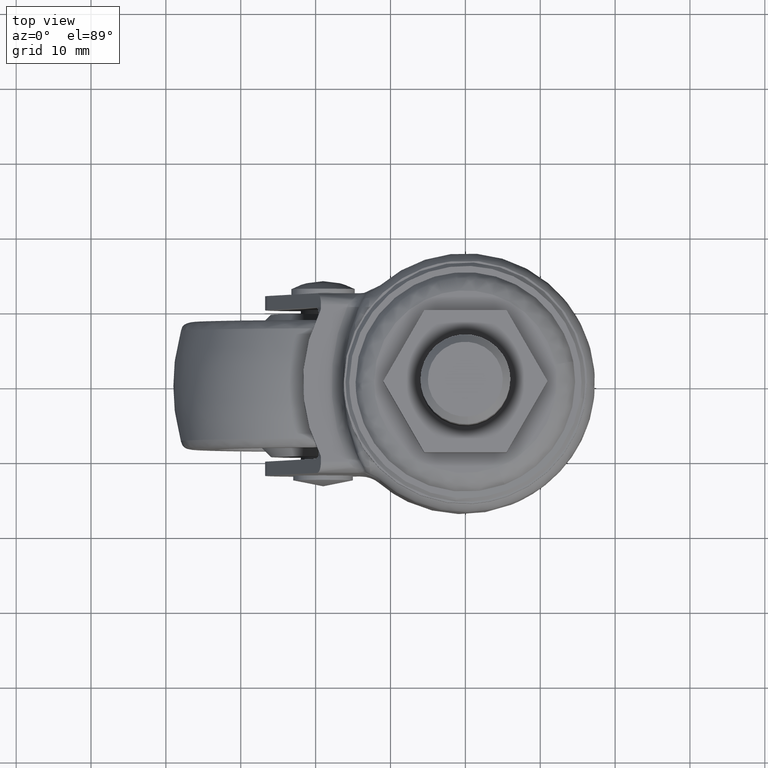
[diagram: clean part render]
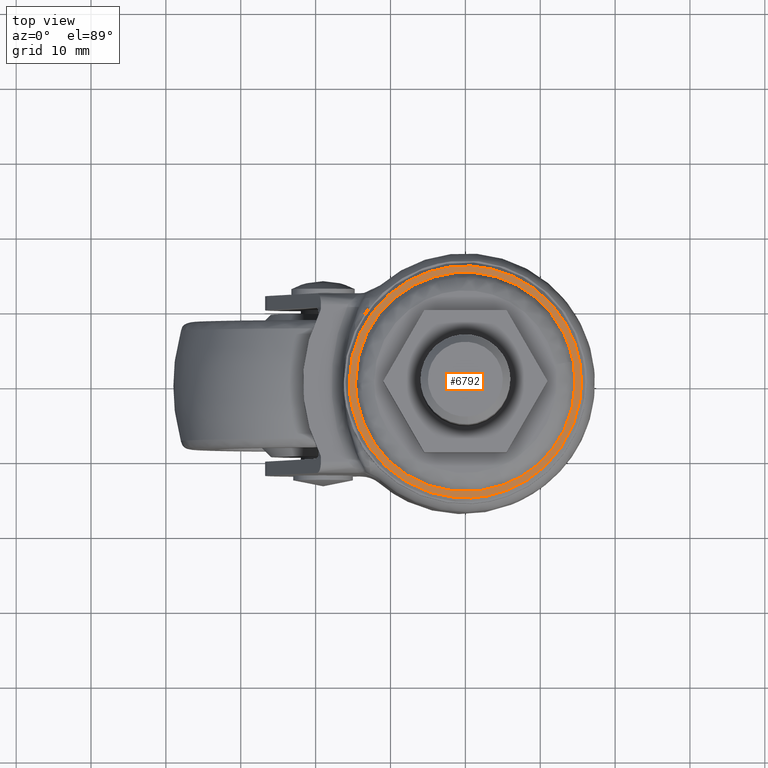
[diagram: same view with one face highlighted and labeled with its STEP entity id]
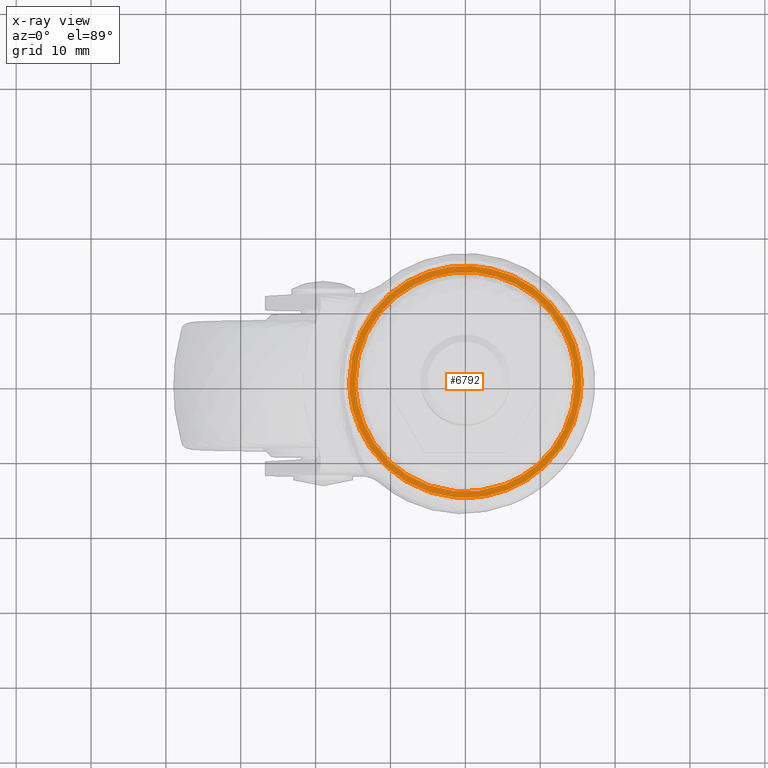
[diagram: x-ray of the same camera — body ghosted, the highlighted face saturated]
A machine part, top view. The second image highlights one B-rep face of the part: STEP entity #6792.
The next image is the same camera in x-ray: the body ghosted, the highlighted face saturated — about 0% of this face is hidden behind the body in this view.
In plain terms, the highlighted face is a freeform B-spline surface patch.
Its self-contained STEP definition (entity closure, byte-faithful):
#4960=CARTESIAN_POINT('',(-1.255003012890636,-15.458707722702281,-4.959810352199863));
#4961=VERTEX_POINT('',#4960);
#4975=CARTESIAN_POINT('',(-15.509567272333950,0.0,-4.959810351413320));
#4976=VERTEX_POINT('',#4975);
#4977=CARTESIAN_POINT('',(-1.255003012890637,-15.458707722702277,-4.959810352199865));
#4978=CARTESIAN_POINT('',(-15.509567272333944,-14.301462147057636,-4.959810351413321));
#4979=CARTESIAN_POINT('',(-15.509567272333950,0.0,-4.959810351413320));
#4987=(BOUNDED_CURVE()B_SPLINE_CURVE(2,(#4977,#4978,#4979),.UNSPECIFIED.,.F.,.U.)B_SPLINE_CURVE_WITH_KNOTS((3,3),(0.764091366880179,1.0),.UNSPECIFIED.)CURVE()GEOMETRIC_REPRESENTATION_ITEM()RATIONAL_B_SPLINE_CURVE((0.968842955708419,0.723615844398616,1.0))REPRESENTATION_ITEM(''));
#4988=EDGE_CURVE('',#4961,#4976,#4987,.T.);
#4990=CARTESIAN_POINT('',(15.509567272333950,0.0,-4.959810351413320));
#4991=VERTEX_POINT('',#4990);
#4992=CARTESIAN_POINT('',(-15.509567272333950,0.0,-4.959810351413320));
#4993=CARTESIAN_POINT('',(-15.509567272333948,15.509567272333948,-4.959810351413320));
#4994=CARTESIAN_POINT('',(0.0,15.509567272333950,-4.959810351413320));
#4995=CARTESIAN_POINT('',(15.509567272333948,15.509567272333948,-4.959810351413320));
#4996=CARTESIAN_POINT('',(15.509567272333950,0.0,-4.959810351413320));
#5004=(BOUNDED_CURVE()B_SPLINE_CURVE(2,(#4992,#4993,#4994,#4995,#4996),.UNSPECIFIED.,.F.,.U.)B_SPLINE_CURVE_WITH_KNOTS((3,2,3),(0.0,0.250000000000000,0.500000000000000),.UNSPECIFIED.)CURVE()GEOMETRIC_REPRESENTATION_ITEM()RATIONAL_B_SPLINE_CURVE((1.0,0.707106781186548,1.0,0.707106781186548,1.0))REPRESENTATION_ITEM(''));
#5005=EDGE_CURVE('',#4976,#4991,#5004,.T.);
#5007=CARTESIAN_POINT('',(15.361628113202469,-2.137067783030997,-4.959810351823423));
#5008=VERTEX_POINT('',#5007);
#5009=CARTESIAN_POINT('',(15.509567272333950,0.0,-4.959810351413320));
#5010=CARTESIAN_POINT('',(15.509567272333950,-1.073654457919245,-4.959810351413320));
#5011=CARTESIAN_POINT('',(15.361628113202471,-2.137067783030997,-4.959810351823423));
#5019=(BOUNDED_CURVE()B_SPLINE_CURVE(2,(#5009,#5010,#5011),.UNSPECIFIED.,.F.,.U.)B_SPLINE_CURVE_WITH_KNOTS((3,3),(0.500000000000000,0.523792609108821),.UNSPECIFIED.)CURVE()GEOMETRIC_REPRESENTATION_ITEM()RATIONAL_B_SPLINE_CURVE((1.0,0.972125224536588,0.949556158165953))REPRESENTATION_ITEM(''));
#5020=EDGE_CURVE('',#4991,#5008,#5019,.T.);
#5061=CARTESIAN_POINT('',(15.361628113202475,-2.137067783030997,-4.959810351823423));
#5062=CARTESIAN_POINT('',(13.501282475422554,-15.509567272333957,-4.959810351413319));
#5063=CARTESIAN_POINT('',(0.0,-15.509567272333950,-4.959810351413320));
#5064=CARTESIAN_POINT('',(-0.628532059357028,-15.509567272333955,-4.959810351413319));
#5065=CARTESIAN_POINT('',(-1.255003012890636,-15.458707722702275,-4.959810352199863));
#5073=(BOUNDED_CURVE()B_SPLINE_CURVE(2,(#5061,#5062,#5063,#5064,#5065),.UNSPECIFIED.,.F.,.U.)B_SPLINE_CURVE_WITH_KNOTS((3,2,3),(0.523792609108820,0.750000000000000,0.764091366880178),.UNSPECIFIED.)CURVE()GEOMETRIC_REPRESENTATION_ITEM()RATIONAL_B_SPLINE_CURVE((0.949556158165955,0.734981556649958,1.0,0.983490936787933,0.968842955708421))REPRESENTATION_ITEM(''));
#5074=EDGE_CURVE('',#5008,#4961,#5073,.T.);
#5115=CARTESIAN_POINT('',(5.218168773961292,-13.699635406515370,-4.959809999940143));
#5116=VERTEX_POINT('',#5115);
#5117=CARTESIAN_POINT('',(-14.659784978822440,0.0,-4.959810000000000));
#5118=VERTEX_POINT('',#5117);
#5119=CARTESIAN_POINT('',(5.218168773961292,-13.699635406515361,-4.959809999940145));
#5120=CARTESIAN_POINT('',(2.697418747283911,-14.659784978822442,-4.959809999999999));
#5121=CARTESIAN_POINT('',(0.0,-14.659784978822440,-4.959810000000000));
#5122=CARTESIAN_POINT('',(-14.659784978822435,-14.659784978822435,-4.959810000000000));
#5123=CARTESIAN_POINT('',(-14.659784978822440,0.0,-4.959810000000000));
#5131=(BOUNDED_CURVE()B_SPLINE_CURVE(2,(#5119,#5120,#5121,#5122,#5123),.UNSPECIFIED.,.F.,.U.)B_SPLINE_CURVE_WITH_KNOTS((3,2,3),(0.689552769336130,0.750000000000000,1.0),.UNSPECIFIED.)CURVE()GEOMETRIC_REPRESENTATION_ITEM()RATIONAL_B_SPLINE_CURVE((0.892609506589179,0.929181664170000,1.0,0.707106781186547,1.0))REPRESENTATION_ITEM(''));
#5132=EDGE_CURVE('',#5116,#5118,#5131,.T.);
#5183=CARTESIAN_POINT('',(14.400119883104360,2.746969780873144,-4.959809999904579));
#5184=VERTEX_POINT('',#5183);
#5198=CARTESIAN_POINT('',(-14.659784978822440,0.0,-4.959810000000000));
#5199=CARTESIAN_POINT('',(-14.659784978822435,14.659784978822435,-4.959810000000000));
#5200=CARTESIAN_POINT('',(0.0,14.659784978822440,-4.959810000000000));
#5201=CARTESIAN_POINT('',(12.127628846967578,14.659784978822440,-4.959810000000000));
#5202=CARTESIAN_POINT('',(14.400119883104361,2.746969780873144,-4.959809999904579));
#5210=(BOUNDED_CURVE()B_SPLINE_CURVE(2,(#5198,#5199,#5200,#5201,#5202),.UNSPECIFIED.,.F.,.U.)B_SPLINE_CURVE_WITH_KNOTS((3,2,3),(0.0,0.250000000000000,0.467838633740448),.UNSPECIFIED.)CURVE()GEOMETRIC_REPRESENTATION_ITEM()RATIONAL_B_SPLINE_CURVE((1.0,0.707106781186547,1.0,0.744786165527341,0.934335795160162))REPRESENTATION_ITEM(''));
#5211=EDGE_CURVE('',#5118,#5184,#5210,.T.);
#5233=CARTESIAN_POINT('',(14.659784978822440,0.0,-4.959810000000000));
#5234=VERTEX_POINT('',#5233);
#5235=CARTESIAN_POINT('',(14.659784978822440,0.0,-4.959810000000000));
#5236=CARTESIAN_POINT('',(14.659784978822438,-10.103339199073854,-4.959809999999999));
#5237=CARTESIAN_POINT('',(5.218168773961292,-13.699635406515368,-4.959809999940143));
#5245=(BOUNDED_CURVE()B_SPLINE_CURVE(2,(#5235,#5236,#5237),.UNSPECIFIED.,.F.,.U.)B_SPLINE_CURVE_WITH_KNOTS((3,3),(0.500000000000000,0.689552769336130),.UNSPECIFIED.)CURVE()GEOMETRIC_REPRESENTATION_ITEM()RATIONAL_B_SPLINE_CURVE((1.0,0.777925117016548,0.892609506589178))REPRESENTATION_ITEM(''));
#5246=EDGE_CURVE('',#5234,#5116,#5245,.T.);
#5248=CARTESIAN_POINT('',(14.400119883104354,2.746969780873144,-4.959809999904579));
#5249=CARTESIAN_POINT('',(14.659784978822444,1.385757679603251,-4.959809999999999));
#5250=CARTESIAN_POINT('',(14.659784978822440,0.0,-4.959810000000000));
#5258=(BOUNDED_CURVE()B_SPLINE_CURVE(2,(#5248,#5249,#5250),.UNSPECIFIED.,.F.,.U.)B_SPLINE_CURVE_WITH_KNOTS((3,3),(0.467838633740448,0.500000000000000),.UNSPECIFIED.)CURVE()GEOMETRIC_REPRESENTATION_ITEM()RATIONAL_B_SPLINE_CURVE((0.934335795160162,0.962320615659206,1.0))REPRESENTATION_ITEM(''));
#5259=EDGE_CURVE('',#5184,#5234,#5258,.T.);
#6775=CARTESIAN_POINT('',(-17.058972982719009,-17.055750818206850,-4.959810175706660));
#6776=CARTESIAN_POINT('',(17.058973814717039,-17.055750818206850,-4.959810175706660));
#6777=CARTESIAN_POINT('',(-17.058972982719009,17.058820524443039,-4.959810175706660));
#6778=CARTESIAN_POINT('',(17.058973814717039,17.058820524443039,-4.959810175706660));
#6779=B_SPLINE_SURFACE_WITH_KNOTS('',1,1,((#6775,#6777),(#6776,#6778)),.UNSPECIFIED.,.F.,.F.,.U.,(2,2),(2,2),(0.0,34.117946797436048),(0.0,34.114571342649903),.UNSPECIFIED.);
#6780=ORIENTED_EDGE('',*,*,#4988,.F.);
#6781=ORIENTED_EDGE('',*,*,#5074,.F.);
#6782=ORIENTED_EDGE('',*,*,#5020,.F.);
#6783=ORIENTED_EDGE('',*,*,#5005,.F.);
#6784=EDGE_LOOP('',(#6780,#6781,#6782,#6783));
#6785=FACE_OUTER_BOUND('',#6784,.T.);
#6786=ORIENTED_EDGE('',*,*,#5211,.T.);
#6787=ORIENTED_EDGE('',*,*,#5259,.T.);
#6788=ORIENTED_EDGE('',*,*,#5246,.T.);
#6789=ORIENTED_EDGE('',*,*,#5132,.T.);
#6790=EDGE_LOOP('',(#6786,#6787,#6788,#6789));
#6791=FACE_BOUND('',#6790,.T.);
#6792=ADVANCED_FACE('',(#6785,#6791),#6779,.T.);